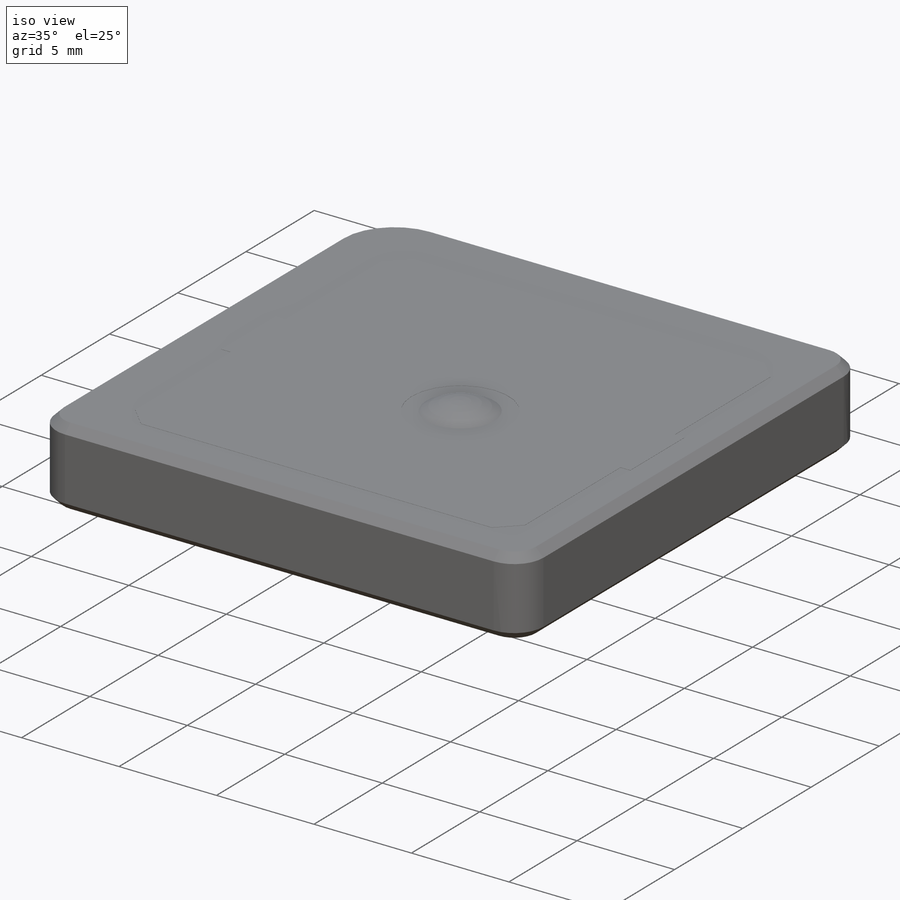
[diagram: iso view]
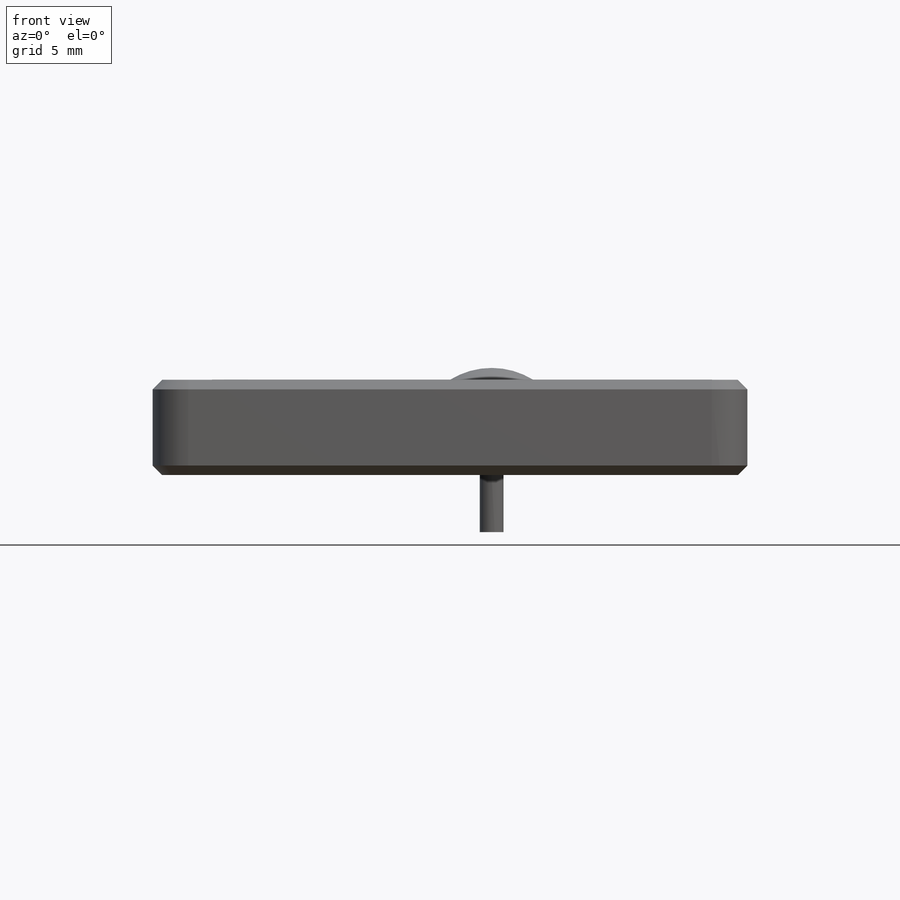
[diagram: front view]
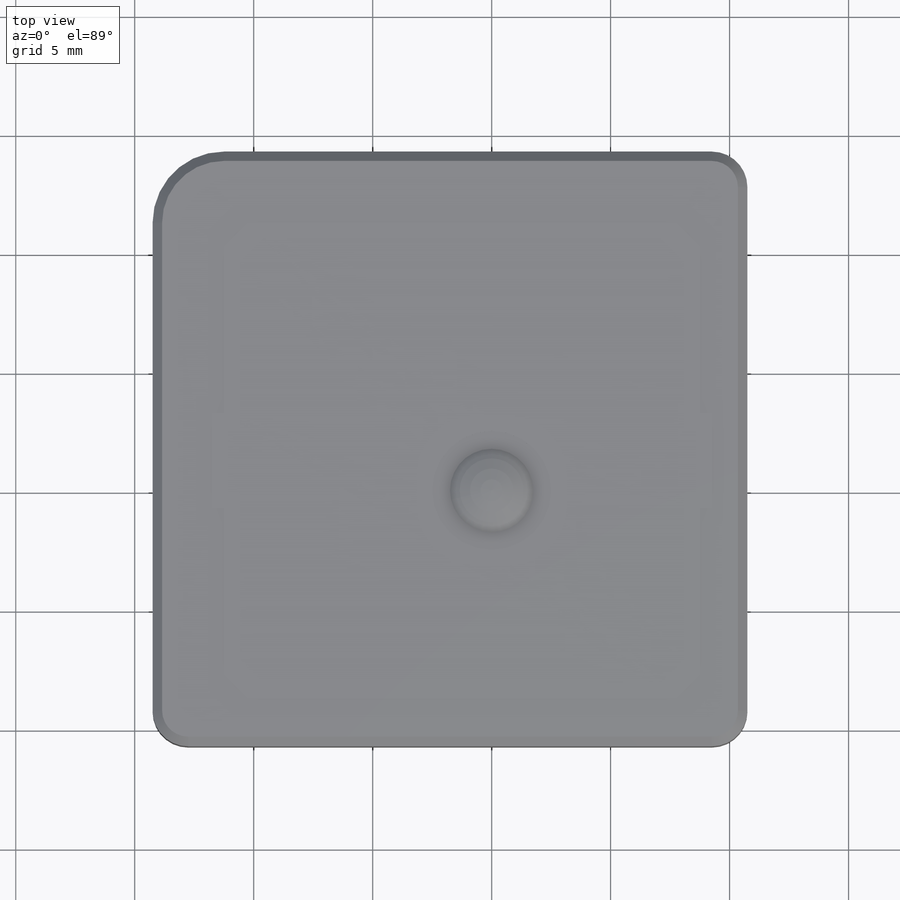
[diagram: top view]
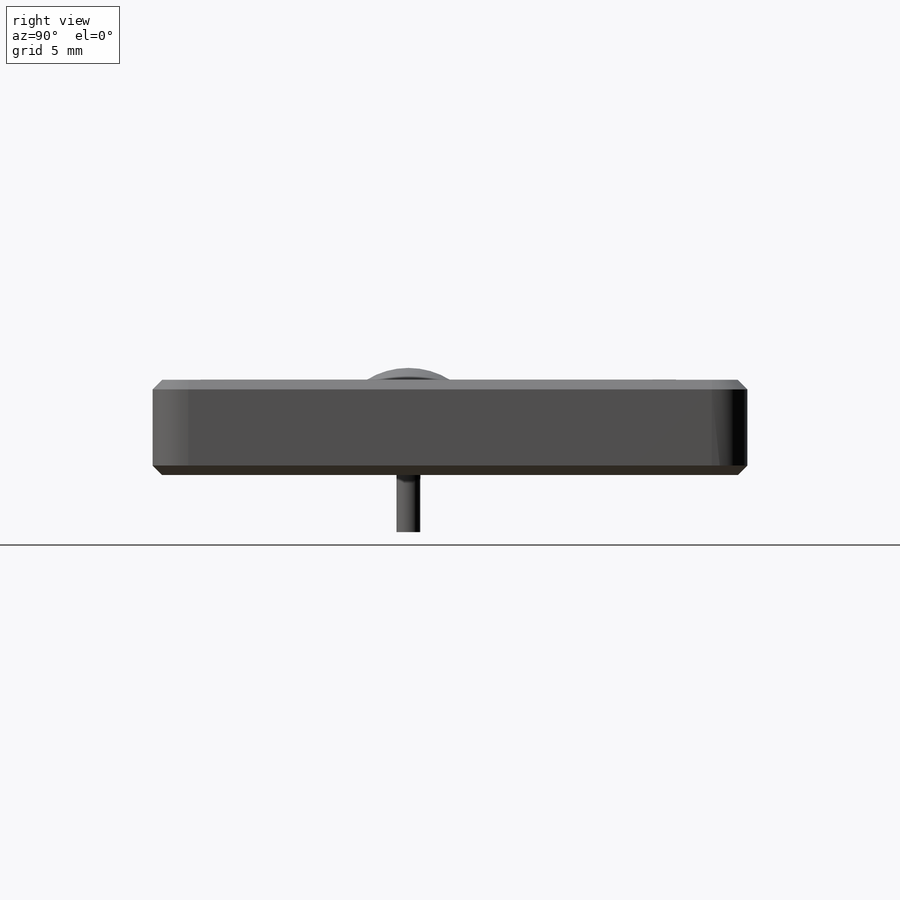
[diagram: right view]
SOLIDWORKS PART (.sldprt)
format: sldprt  version: not decoded by parser v0  size: 230,912 bytes
history: native  units: mm
features: sketch x3, extrude x2, material x1, chamfer x1, revolve x1 (+13 scaffold rows collapsed)
feature tree (21):
  scaffold x13  (default folders/planes/origin — collapsed)
  material  "Material <not specified>"
  sketch  "Sketch1"  dims[D5=3.0mm D6=1.5mm D1=25.0mm D2=25.0mm D3=1.75mm D4=1.75mm]
  extrude  "Boss-Extrude1"  Depth=4mm
  chamfer  "Chamfer1"  Distance=0.4mm Angle=45deg
  sketch  "Sketch2"  dims[D1=0.5mm D2=3.5mm D3=0.5mm D4=2.4mm]
  revolve  "Revolve1"  Angle=360deg
  sketch  "Sketch3"  dims[D5=5.0mm D1=20.0mm D2=20.0mm D3=3.0mm D4=3.0mm D6=4.0mm D11=0.5mm D12=0.5mm D13=4.0mm]
  extrude  "Boss-Extrude2"  Depth=0.01mm
decode coverage: 7 of 7 modeling features carry decoded parameters
note: suppression state not decoded; provenance and decode notes live in map.json
